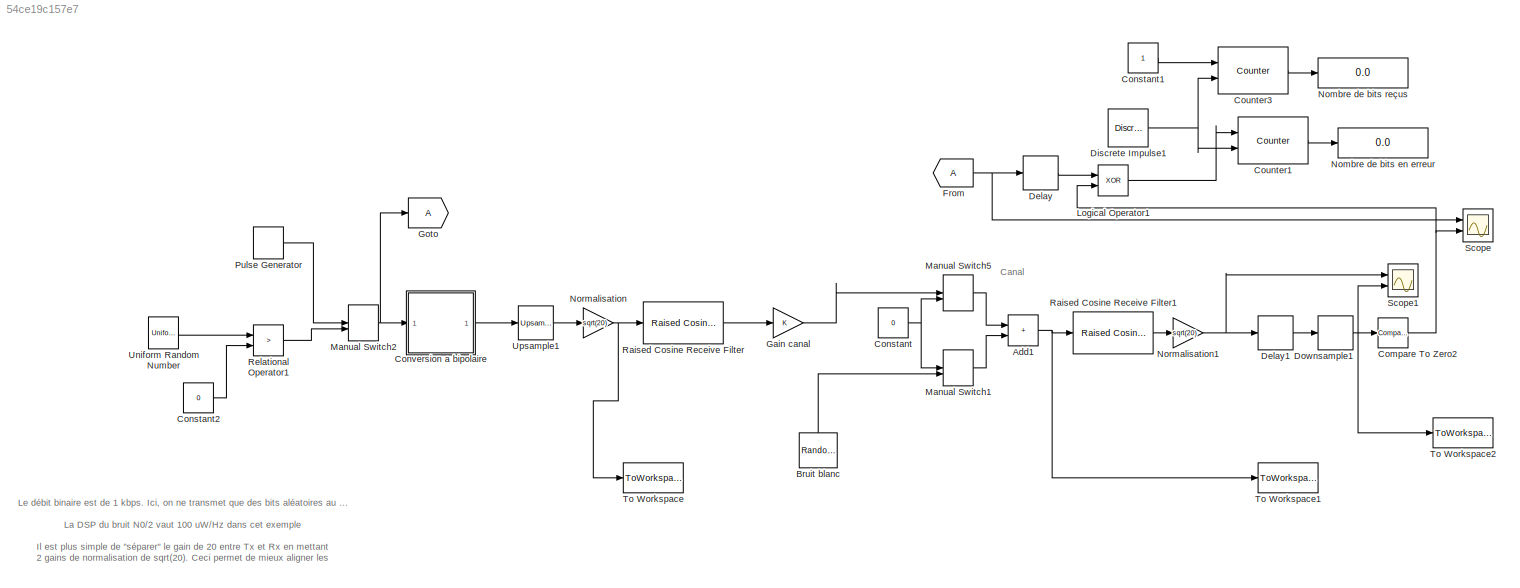
MODEL slx_54ce19c157e7
KIND model
CONFIG AbsTol = auto
CONFIG EnableMultiTasking = off
CONFIG FixedStep = auto
CONFIG MaxStep = auto
CONFIG MinStep = auto
CONFIG RelTol = 1e-3
CONFIG SampleTimeConstraint = Unconstrained
CONFIG SolverName = VariableStepAuto
CONFIG StartTime = 0.0
CONFIG StopTime = 20
BLOCK [Sum] Add1
  IconShape = rectangular
  Ports = [2, 1]
BLOCK [Reference] Bruit blanc   REF=dspsrcs4/Random
Source
  Diagnostics = AllowInheritedTsInSrc
  NameLocation = right
  Ports = [0, 1]
  SourceBlock = dspsrcs4/Random\nSource
  SourceProductBaseCode = DS
  SourceType = Random Source
  UserDataPersistent = on
BLOCK [Reference] Compare To Zero2  REF=simulink/Logic and Bit
Operations/Compare
To Zero
  Ports = [1, 1]
  SourceBlock = simulink/Logic and Bit\nOperations/Compare\nTo Zero
  SourceProductBaseCode = SL
  SourceType = Compare To Zero
BLOCK [Constant] Constant
  Value = 0
BLOCK [Constant] Constant1
  SampleTime = 1/1000
BLOCK [Constant] Constant2
  Value = 0
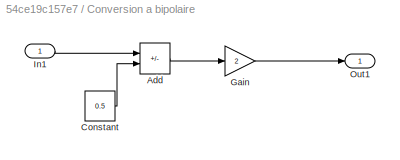
BLOCK [SubSystem] Conversion a bipolaire
  Ports = [1, 1]
  RequestExecContextInheritance = off
BLOCK [Sum] Conversion a bipolaire/Add
  IconShape = rectangular
  Inputs = +-
  Ports = [2, 1]
BLOCK [Constant] Conversion a bipolaire/Constant
  Value = 0.5
BLOCK [Gain] Conversion a bipolaire/Gain
  Gain = 2
BLOCK [Inport] Conversion a bipolaire/In1
BLOCK [Outport] Conversion a bipolaire/Out1
  VectorParamsAs1DForOutWhenUnconnected = off
BLOCK [Reference] Counter1  REF=dspswit3/Counter
  Ports = [2, 1]
  SourceBlock = dspswit3/Counter
  SourceProductBaseCode = DS
  SourceType = Counter
BLOCK [Reference] Counter3  REF=dspswit3/Counter
  Ports = [2, 1]
  SourceBlock = dspswit3/Counter
  SourceProductBaseCode = DS
  SourceType = Counter
BLOCK [Delay] Delay
  DelayLength = 10
  InitialCondition = 0
  InputPortMap = u0
  Ports = [1, 1]
BLOCK [Delay] Delay1
  DelayLength = 0
  InitialCondition = 0
  InputPortMap = u0
  NameLocation = top
  Ports = [1, 1]
BLOCK [Reference] Discrete Impulse1  REF=dspsrcs4/Discrete 
Impulse
  Ports = [0, 1]
  SourceBlock = dspsrcs4/Discrete \nImpulse
  SourceProductBaseCode = DS
  SourceType = Discrete Impulse
BLOCK [DownSample] Downsample1
  InputProcessing = Elements as channels (sample based)
  N = 20
  RateOptions = Allow multirate processing
  UserDataPersistent = on
BLOCK [From] From
BLOCK [Gain] Gain canal
BLOCK [Goto] Goto
BLOCK [Logic] Logical Operator1
  AllPortsSameDT = off
  Operator = XOR
  OutDataTypeStr = boolean
  Ports = [2, 1]
BLOCK [ManualSwitch] Manual Switch1
  CurrentSetting = 0
BLOCK [ManualSwitch] Manual Switch2
  CurrentSetting = 0
BLOCK [ManualSwitch] Manual Switch5
BLOCK [Display] Nombre de bits en erreur
  Decimation = 1
  Format = long
  Ports = [1]
BLOCK [Display] Nombre de bits reçus
  Decimation = 1
  Format = long
  Ports = [1]
BLOCK [Gain] Normalisation
  Gain = sqrt(20)
BLOCK [Gain] Normalisation1
  Gain = sqrt(20)
BLOCK [DiscretePulseGenerator] Pulse Generator
  Ports = [0, 1]
  SampleTime = 1/1000
BLOCK [Reference] Raised Cosine Receive Filter  REF=commfilt2/Raised Cosine
Receive Filter
  Ports = [1, 1]
  SourceBlock = commfilt2/Raised Cosine\nReceive Filter
  SourceProductBaseCode = CM
  SourceType = Raised Cosine Receive Filter
BLOCK [Reference] Raised Cosine Receive Filter1  REF=commfilt2/Raised Cosine
Receive Filter
  Ports = [1, 1]
  SourceBlock = commfilt2/Raised Cosine\nReceive Filter
  SourceProductBaseCode = CM
  SourceType = Raised Cosine Receive Filter
BLOCK [RelationalOperator] Relational Operator1
  InputSameDT = off
  Operator = >
  OutDataTypeStr = boolean
  Ports = [2, 1]
BLOCK [Scope] Scope
  Floating = off
  NumInputPorts = 2
  Ports = [2]
  ScopeSpecificationString = Simulink.scopes.TimeScopeBlockCfg('CurrentConfiguration', extmgr.ConfigurationSet(extmgr.Configuration('Core','General UI',true),extmgr.Configuration('Core','Source UI',true),extmgr.Configuration('Sources','WiredSimulink',true),extmgr.Configuration('Visuals','Time Domain',true,'SerializedDisplays',{struct('MinYLimReal','-1.25','MaxYLimReal','1.25','YLabelReal','','MinYLimMag','0.00000','MaxYLimMag...<+1991ch>
BLOCK [Scope] Scope1
  Floating = off
  NumInputPorts = 2
  Ports = [2]
  ScopeSpecificationString = Simulink.scopes.TimeScopeBlockCfg('CurrentConfiguration', extmgr.ConfigurationSet(extmgr.Configuration('Core','General UI',true),extmgr.Configuration('Core','Source UI',true),extmgr.Configuration('Sources','WiredSimulink',true,'DataLoggingVariableName','ScopeData1'),extmgr.Configuration('Visuals','Time Domain',true,'SerializedDisplays',{struct('MinYLimReal','-26.52275','MaxYLimReal','30.5708','YLa...<+2041ch>
BLOCK [ToWorkspace] To Workspace
  MaxDataPoints = inf
  Ports = [1]
  SampleTime = -1
  Save2DSignal = 2-D array (concatenate along first dimension)
  VariableName = x1
BLOCK [ToWorkspace] To Workspace1
  MaxDataPoints = inf
  Ports = [1]
  SampleTime = -1
  Save2DSignal = 2-D array (concatenate along first dimension)
  VariableName = x2
BLOCK [ToWorkspace] To Workspace2
  MaxDataPoints = inf
  Ports = [1]
  SampleTime = -1
  Save2DSignal = 2-D array (concatenate along first dimension)
  VariableName = x
BLOCK [UniformRandomNumber] Uniform Random Number
  SampleTime = 1/1000
  Seed = 3
BLOCK [Reference] Upsample1  REF=dspsigops/Upsample
  Ports = [1, 1]
  SourceBlock = dspsigops/Upsample
  SourceProductBaseCode = DS
  SourceType = Upsample
  UserDataPersistent = on
ANNOTATION (root): Canal
ANNOTATION (root): Le débit binaire est de 1 kbps. Ici, on ne transmet que des bits aléatoires au lieu du signal audio. Vous pouvez faire cela aussi pour tester votre design sans les complications associées au signal audio. La DSP du bruit N0/2 vaut 100 uW/Hz dans cet exemple Il est plus simple de "séparer" le gain de 20 entre Tx et Rx en mettant 2 gains de normalisation de sqrt(20). Ceci permet de mieux aligner les...<+550ch>
NET Add1:1 -> Raised Cosine Receive Filter1:1, To Workspace1:1
LINE Bruit blanc :1 -> Manual Switch1:2
NET Compare To Zero2:1 -> Logical Operator1:2, Scope:2
LINE Constant1:1 -> Counter3:1
LINE Constant2:1 -> Relational Operator1:2
NET Constant:1 -> Manual Switch1:1, Manual Switch5:2
LINE Conversion a bipolaire/Add:1 -> Conversion a bipolaire/Gain:1
LINE Conversion a bipolaire/Constant:1 -> Conversion a bipolaire/Add:2
LINE Conversion a bipolaire/Gain:1 -> Conversion a bipolaire/Out1:1
LINE Conversion a bipolaire/In1:1 -> Conversion a bipolaire/Add:1
LINE Conversion a bipolaire:1 -> Upsample1:1
LINE Counter1:1 -> Nombre de bits en erreur:1
LINE Counter3:1 -> Nombre de bits reçus:1
LINE Delay1:1 -> Downsample1:1
LINE Delay:1 -> Logical Operator1:1
NET Discrete Impulse1:1 -> Counter1:2, Counter3:2
NET Downsample1:1 -> Compare To Zero2:1, Scope1:2, To Workspace2:1
NET From:1 -> Delay:1, Scope:1
LINE Gain canal:1 -> Manual Switch5:1
LINE Logical Operator1:1 -> Counter1:1
LINE Manual Switch1:1 -> Add1:2
NET Manual Switch2:1 -> Conversion a bipolaire:1, Goto:1
LINE Manual Switch5:1 -> Add1:1
NET Normalisation1:1 -> Delay1:1, Scope1:1
NET Normalisation:1 -> Raised Cosine Receive Filter:1, To Workspace:1
LINE Pulse Generator:1 -> Manual Switch2:1
LINE Raised Cosine Receive Filter1:1 -> Normalisation1:1
LINE Raised Cosine Receive Filter:1 -> Gain canal:1
LINE Relational Operator1:1 -> Manual Switch2:2
LINE Uniform Random Number:1 -> Relational Operator1:1
LINE Upsample1:1 -> Normalisation:1
note: NET lines group one-source signal fan-out (src -> all destinations, sorted); 1:1 wires keep LINE
